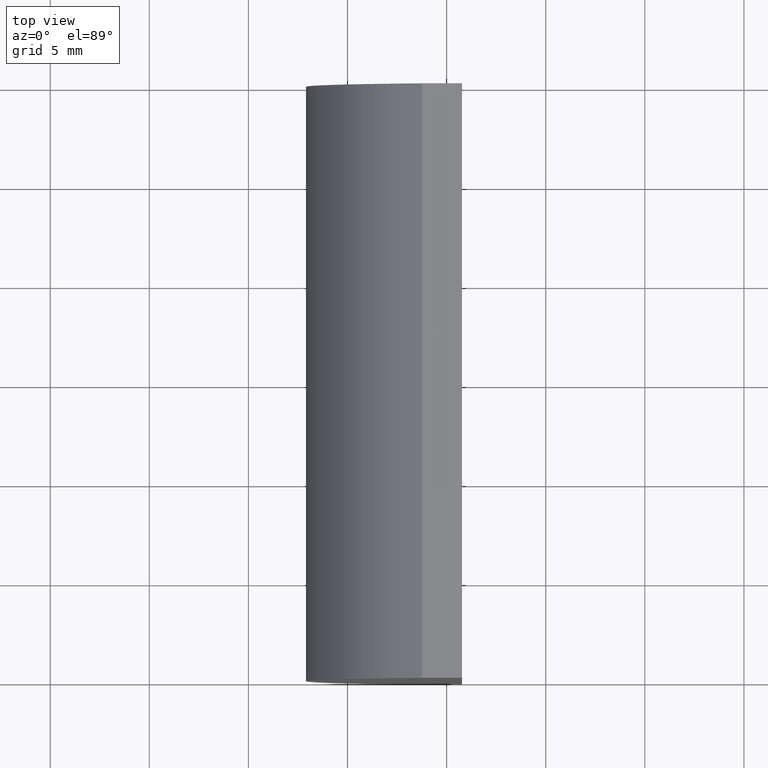
[diagram: clean part render]
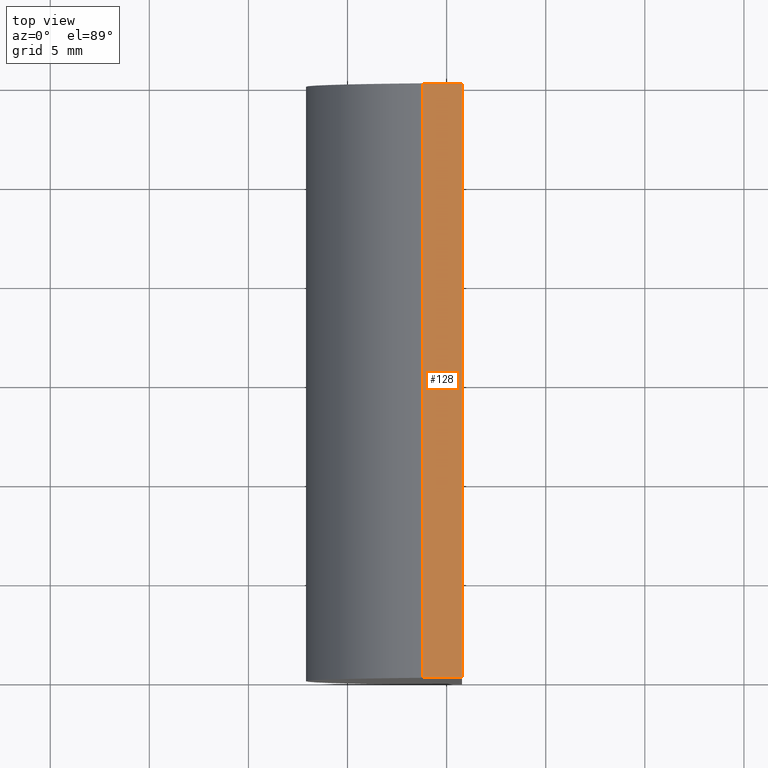
[diagram: same view with one face highlighted and labeled with its STEP entity id]
A machine part, top view. The second image highlights one B-rep face of the part: STEP entity #128.
In plain terms, the highlighted planar face has unit normal (0, 0, -1).
Its self-contained STEP definition (entity closure, byte-faithful):
#1 = EDGE_CURVE ( 'NONE', #183, #32, #134, .T. ) ;
#2 = PLANE ( 'NONE',  #62 ) ;
#5 = VECTOR ( 'NONE', #172, 1000.000000000000000 ) ;
#6 = CARTESIAN_POINT ( 'NONE',  ( -1.221757203477694200, 0.0000000000000000000, 10.00000000000000000 ) ) ;
#10 = ORIENTED_EDGE ( 'NONE', *, *, #80, .F. ) ;
#15 = ORIENTED_EDGE ( 'NONE', *, *, #1, .T. ) ;
#23 = CARTESIAN_POINT ( 'NONE',  ( -1.221757203477694200, 30.00000000000000000, 10.00000000000000000 ) ) ;
#26 = LINE ( 'NONE', #59, #34 ) ;
#28 = DIRECTION ( 'NONE',  ( 0.0000000000000000000, 0.0000000000000000000, -1.000000000000000000 ) ) ;
#32 = VERTEX_POINT ( 'NONE', #6 ) ;
#34 = VECTOR ( 'NONE', #111, 1000.000000000000000 ) ;
#35 = EDGE_CURVE ( 'NONE', #32, #149, #104, .T. ) ;
#51 = ORIENTED_EDGE ( 'NONE', *, *, #74, .F. ) ;
#54 = VECTOR ( 'NONE', #93, 1000.000000000000000 ) ;
#59 = CARTESIAN_POINT ( 'NONE',  ( -1.221757203477694200, 30.00000000000000000, 10.00000000000000000 ) ) ;
#61 = CARTESIAN_POINT ( 'NONE',  ( 0.7752043348512655000, 30.00000000000000000, 10.00000000000000000 ) ) ;
#62 = AXIS2_PLACEMENT_3D ( 'NONE', #158, #28, #154 ) ;
#68 = VERTEX_POINT ( 'NONE', #124 ) ;
#74 = EDGE_CURVE ( 'NONE', #183, #68, #26, .T. ) ;
#80 = EDGE_CURVE ( 'NONE', #68, #149, #162, .T. ) ;
#89 = CARTESIAN_POINT ( 'NONE',  ( -1.221757203477694200, 30.00000000000000000, 10.00000000000000000 ) ) ;
#91 = CARTESIAN_POINT ( 'NONE',  ( -1.221757203477694200, 0.0000000000000000000, 10.00000000000000000 ) ) ;
#93 = DIRECTION ( 'NONE',  ( -0.0000000000000000000, -1.000000000000000000, -0.0000000000000000000 ) ) ;
#104 = LINE ( 'NONE', #91, #179 ) ;
#106 = CARTESIAN_POINT ( 'NONE',  ( 0.7752043348512655000, 0.0000000000000000000, 10.00000000000000000 ) ) ;
#111 = DIRECTION ( 'NONE',  ( 1.000000000000000000, 0.0000000000000000000, 0.0000000000000000000 ) ) ;
#124 = CARTESIAN_POINT ( 'NONE',  ( 0.7752043348512655000, 30.00000000000000000, 10.00000000000000000 ) ) ;
#128 = ADVANCED_FACE ( 'NONE', ( #190 ), #2, .F. ) ;
#134 = LINE ( 'NONE', #89, #5 ) ;
#149 = VERTEX_POINT ( 'NONE', #106 ) ;
#154 = DIRECTION ( 'NONE',  ( -1.000000000000000000, 0.0000000000000000000, -0.0000000000000000000 ) ) ;
#157 = DIRECTION ( 'NONE',  ( 1.000000000000000000, 0.0000000000000000000, 0.0000000000000000000 ) ) ;
#158 = CARTESIAN_POINT ( 'NONE',  ( -1.221757203477694200, 30.00000000000000000, 10.00000000000000000 ) ) ;
#162 = LINE ( 'NONE', #61, #54 ) ;
#172 = DIRECTION ( 'NONE',  ( -0.0000000000000000000, -1.000000000000000000, -0.0000000000000000000 ) ) ;
#179 = VECTOR ( 'NONE', #157, 1000.000000000000000 ) ;
#183 = VERTEX_POINT ( 'NONE', #23 ) ;
#190 = FACE_OUTER_BOUND ( 'NONE', #195, .T. ) ;
#194 = ORIENTED_EDGE ( 'NONE', *, *, #35, .T. ) ;
#195 = EDGE_LOOP ( 'NONE', ( #194, #10, #51, #15 ) ) ;